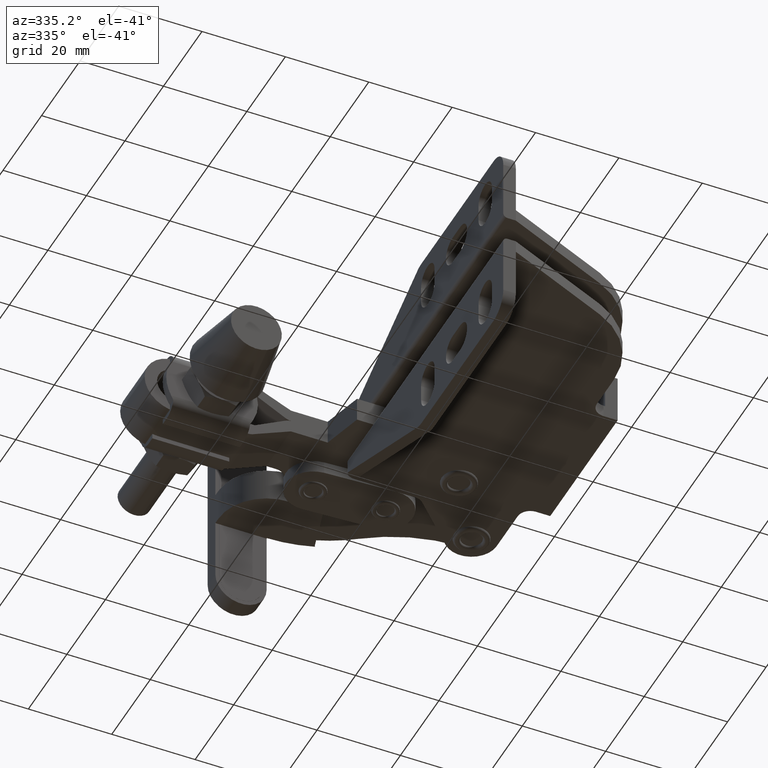
[diagram: clean part render]
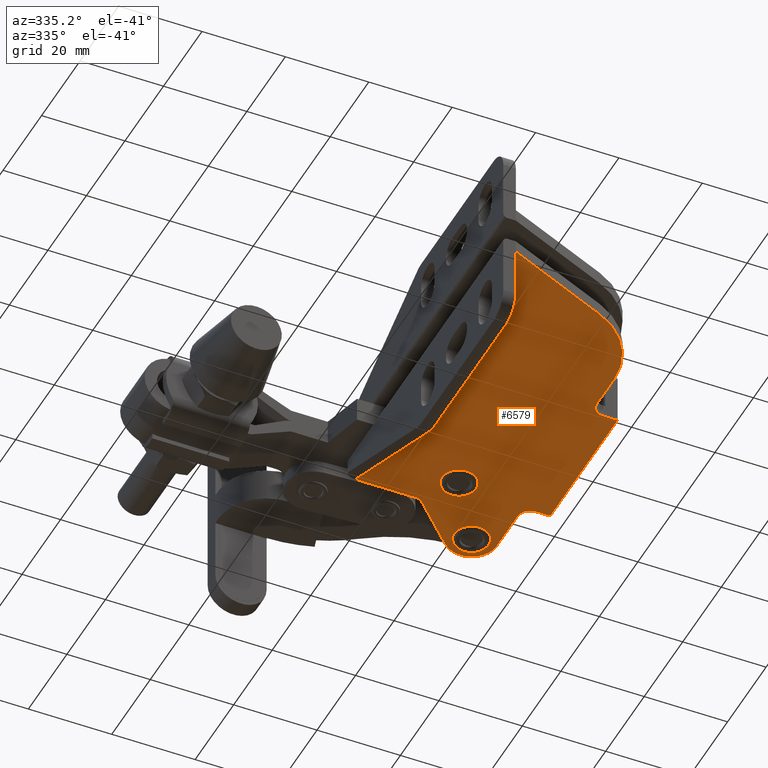
[diagram: same view with one face highlighted and labeled with its STEP entity id]
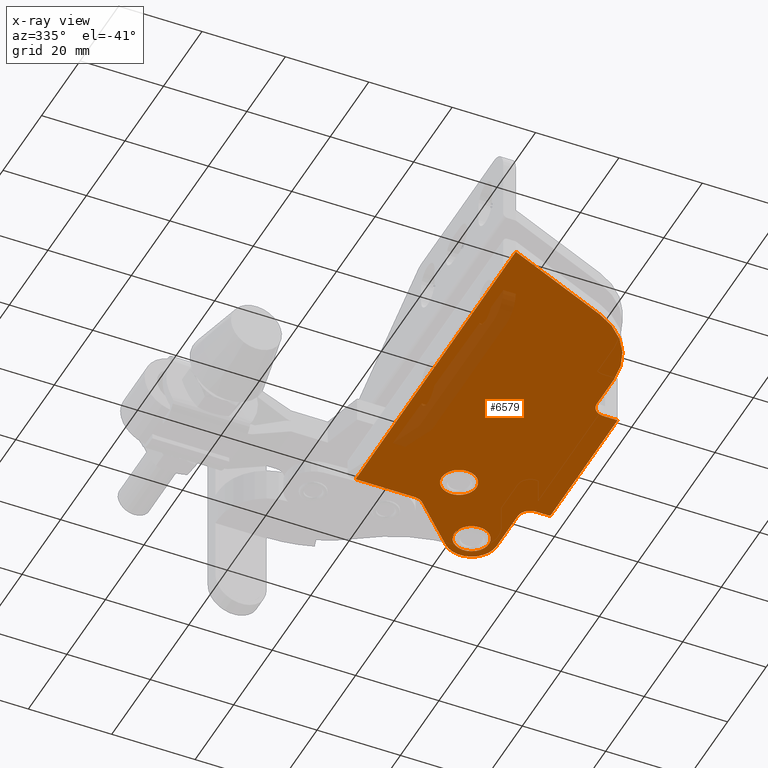
[diagram: x-ray of the same camera — body ghosted, the highlighted face saturated]
A machine part, auxiliary view. The second image highlights one B-rep face of the part: STEP entity #6579.
The next image is the same camera in x-ray: the body ghosted, the highlighted face saturated — about 9% of this face is hidden behind the body in this view.
In plain terms, the highlighted planar face has unit normal (0, 0, 1).
Its self-contained STEP definition (entity closure, byte-faithful):
#27 = EDGE_CURVE ( 'NONE', #7327, #4670, #3059, .T. ) ;
#130 = VERTEX_POINT ( 'NONE', #6921 ) ;
#243 = VERTEX_POINT ( 'NONE', #13247 ) ;
#336 = VECTOR ( 'NONE', #3822, 1000.000000000000000 ) ;
#359 = DIRECTION ( 'NONE',  ( -0.0000000000000000000, -0.0000000000000000000, -1.000000000000000000 ) ) ;
#365 = ORIENTED_EDGE ( 'NONE', *, *, #11018, .F. ) ;
#471 = DIRECTION ( 'NONE',  ( 0.0000000000000000000, 0.0000000000000000000, 1.000000000000000000 ) ) ;
#496 = ORIENTED_EDGE ( 'NONE', *, *, #15171, .F. ) ;
#654 = CARTESIAN_POINT ( 'NONE',  ( 17.24999999999998200, 83.20000000000004500, -8.999999999999994700 ) ) ;
#655 = VECTOR ( 'NONE', #3395, 1000.000000000000000 ) ;
#681 = ORIENTED_EDGE ( 'NONE', *, *, #15051, .F. ) ;
#728 = CARTESIAN_POINT ( 'NONE',  ( 3.000000000000020000, 83.20000000000004500, -8.999999999999994700 ) ) ;
#881 = CARTESIAN_POINT ( 'NONE',  ( 43.19999999999995300, 79.50000000000001400, -8.999999999999994700 ) ) ;
#1035 = DIRECTION ( 'NONE',  ( 0.0000000000000000000, 0.0000000000000000000, 1.000000000000000000 ) ) ;
#1114 = AXIS2_PLACEMENT_3D ( 'NONE', #6155, #14407, #7330 ) ;
#1215 = CARTESIAN_POINT ( 'NONE',  ( 23.90000000000013000, 74.69999999999991800, -8.999999999999994700 ) ) ;
#1459 = CARTESIAN_POINT ( 'NONE',  ( 2.999999999999992500, -2.001604010742468500E-015, -8.999999999999994700 ) ) ;
#1496 = DIRECTION ( 'NONE',  ( 0.0000000000000000000, 0.0000000000000000000, 1.000000000000000000 ) ) ;
#1619 = DIRECTION ( 'NONE',  ( -0.0000000000000000000, -0.0000000000000000000, -1.000000000000000000 ) ) ;
#1666 = CARTESIAN_POINT ( 'NONE',  ( 19.82815884651003600, 73.89837064628061100, -8.999999999999994700 ) ) ;
#1752 = ORIENTED_EDGE ( 'NONE', *, *, #4869, .T. ) ;
#2026 = FACE_BOUND ( 'NONE', #2135, .T. ) ;
#2103 = DIRECTION ( 'NONE',  ( -1.000000000000000000, -0.0000000000000000000, -0.0000000000000000000 ) ) ;
#2108 = DIRECTION ( 'NONE',  ( 1.000000000000000000, 0.0000000000000000000, 0.0000000000000000000 ) ) ;
#2135 = EDGE_LOOP ( 'NONE', ( #681, #10296 ) ) ;
#2211 = EDGE_CURVE ( 'NONE', #130, #12495, #3347, .T. ) ;
#2244 = VERTEX_POINT ( 'NONE', #4979 ) ;
#2436 = DIRECTION ( 'NONE',  ( 1.000000000000000000, -3.344045254895048800E-015, 0.0000000000000000000 ) ) ;
#2568 = ORIENTED_EDGE ( 'NONE', *, *, #2989, .F. ) ;
#2597 = VECTOR ( 'NONE', #3763, 1000.000000000000000 ) ;
#2989 = EDGE_CURVE ( 'NONE', #10191, #130, #13856, .T. ) ;
#3003 = CARTESIAN_POINT ( 'NONE',  ( 46.60000000000002300, 76.50000000000001400, -8.999999999999994700 ) ) ;
#3059 = LINE ( 'NONE', #15386, #15275 ) ;
#3113 = ORIENTED_EDGE ( 'NONE', *, *, #13712, .T. ) ;
#3181 = CARTESIAN_POINT ( 'NONE',  ( 19.37909327213442300, 84.08648117146978500, -8.999999999999994700 ) ) ;
#3347 = LINE ( 'NONE', #10891, #2597 ) ;
#3390 = CARTESIAN_POINT ( 'NONE',  ( 34.20000000000014500, 90.49999999999997200, -8.999999999999991100 ) ) ;
#3395 = DIRECTION ( 'NONE',  ( -4.625929269272216600E-015, 1.000000000000000000, 0.0000000000000000000 ) ) ;
#3617 = CIRCLE ( 'NONE', #7940, 4.150000000000001200 ) ;
#3622 = DIRECTION ( 'NONE',  ( 0.0000000000000000000, 1.000000000000000000, 0.0000000000000000000 ) ) ;
#3706 = VECTOR ( 'NONE', #9089, 1000.000000000000000 ) ;
#3763 = DIRECTION ( 'NONE',  ( 0.0000000000000000000, 1.000000000000000000, 0.0000000000000000000 ) ) ;
#3822 = DIRECTION ( 'NONE',  ( -1.000000000000000000, -0.0000000000000000000, -0.0000000000000000000 ) ) ;
#3838 = EDGE_CURVE ( 'NONE', #8816, #11541, #3617, .T. ) ;
#4190 = DIRECTION ( 'NONE',  ( 0.0000000000000000000, -0.0000000000000000000, 1.000000000000000000 ) ) ;
#4598 = DIRECTION ( 'NONE',  ( 0.9811665430096616600, 0.1931636996914014300, 0.0000000000000000000 ) ) ;
#4670 = VERTEX_POINT ( 'NONE', #3003 ) ;
#4811 = ORIENTED_EDGE ( 'NONE', *, *, #12786, .F. ) ;
#4866 = AXIS2_PLACEMENT_3D ( 'NONE', #3390, #11702, #4598 ) ;
#4869 = EDGE_CURVE ( 'NONE', #13692, #12276, #15245, .T. ) ;
#4979 = CARTESIAN_POINT ( 'NONE',  ( 2.999999999999992500, -2.001604010742468500E-015, -8.999999999999994700 ) ) ;
#5207 = ORIENTED_EDGE ( 'NONE', *, *, #6197, .F. ) ;
#5306 = CARTESIAN_POINT ( 'NONE',  ( 29.94181345573087300, 94.72703765706036400, -8.999999999999994700 ) ) ;
#5427 = AXIS2_PLACEMENT_3D ( 'NONE', #881, #9211, #2108 ) ;
#6125 = AXIS2_PLACEMENT_3D ( 'NONE', #1215, #9542, #2436 ) ;
#6155 = CARTESIAN_POINT ( 'NONE',  ( 17.24999999999998200, 86.20000000000006000, -8.999999999999994700 ) ) ;
#6197 = EDGE_CURVE ( 'NONE', #12155, #2244, #10196, .T. ) ;
#6245 = EDGE_CURVE ( 'NONE', #9690, #7526, #14619, .T. ) ;
#6309 = CARTESIAN_POINT ( 'NONE',  ( 40.19999999999999600, 90.50000000000002800, -8.999999999999994700 ) ) ;
#6472 = AXIS2_PLACEMENT_3D ( 'NONE', #8641, #1496, #9818 ) ;
#6579 = ADVANCED_FACE ( 'NONE', ( #14234, #11501, #2026 ), #6983, .F. ) ;
#6689 = LINE ( 'NONE', #7354, #336 ) ;
#6771 = ORIENTED_EDGE ( 'NONE', *, *, #14610, .F. ) ;
#6797 = LINE ( 'NONE', #10515, #655 ) ;
#6921 = CARTESIAN_POINT ( 'NONE',  ( 40.20000000000001000, 79.50000000000001400, -8.999999999999994700 ) ) ;
#6983 = PLANE ( 'NONE',  #8076 ) ;
#7327 = VERTEX_POINT ( 'NONE', #13990 ) ;
#7330 = DIRECTION ( 'NONE',  ( 1.000000000000000000, 0.0000000000000000000, 0.0000000000000000000 ) ) ;
#7354 = CARTESIAN_POINT ( 'NONE',  ( 43.19999999999995300, 76.50000000000001400, -8.999999999999994700 ) ) ;
#7384 = CARTESIAN_POINT ( 'NONE',  ( 40.20000000000007400, 38.49999999999855000, -8.999999999999994700 ) ) ;
#7496 = CARTESIAN_POINT ( 'NONE',  ( 43.20000000000002400, 38.49999999999855000, -8.999999999999994700 ) ) ;
#7508 = LINE ( 'NONE', #5306, #13417 ) ;
#7526 = VERTEX_POINT ( 'NONE', #13157 ) ;
#7606 = CARTESIAN_POINT ( 'NONE',  ( 34.19999999999994600, 90.50000000000002800, -8.999999999999994700 ) ) ;
#7624 = VERTEX_POINT ( 'NONE', #14601 ) ;
#7940 = AXIS2_PLACEMENT_3D ( 'NONE', #8758, #1619, #9929 ) ;
#8076 = AXIS2_PLACEMENT_3D ( 'NONE', #8184, #1035, #9365 ) ;
#8184 = CARTESIAN_POINT ( 'NONE',  ( 20.20000000000004500, 29.49999999999997200, -8.999999999999994700 ) ) ;
#8191 = ORIENTED_EDGE ( 'NONE', *, *, #13147, .F. ) ;
#8240 = VERTEX_POINT ( 'NONE', #654 ) ;
#8559 = ORIENTED_EDGE ( 'NONE', *, *, #6245, .F. ) ;
#8641 = CARTESIAN_POINT ( 'NONE',  ( 20.20000000000004500, 29.49999999999997200, -8.999999999999994700 ) ) ;
#8708 = DIRECTION ( 'NONE',  ( 1.000000000000000000, 0.0000000000000000000, 0.0000000000000000000 ) ) ;
#8758 = CARTESIAN_POINT ( 'NONE',  ( 23.90000000000013000, 74.69999999999991800, -8.999999999999994700 ) ) ;
#8770 = EDGE_LOOP ( 'NONE', ( #1752, #3113 ) ) ;
#8796 = ORIENTED_EDGE ( 'NONE', *, *, #10492, .F. ) ;
#8808 = DIRECTION ( 'NONE',  ( 1.000000000000000000, 0.0000000000000000000, 0.0000000000000000000 ) ) ;
#8816 = VERTEX_POINT ( 'NONE', #1666 ) ;
#8958 = CARTESIAN_POINT ( 'NONE',  ( 27.97184115349022400, 75.50162935371923800, -8.999999999999994700 ) ) ;
#9036 = DIRECTION ( 'NONE',  ( 0.9142238515396996500, 0.4052095128151820800, 0.0000000000000000000 ) ) ;
#9040 = CARTESIAN_POINT ( 'NONE',  ( 43.20000000000002400, 41.49999999999849400, -8.999999999999994700 ) ) ;
#9089 = DIRECTION ( 'NONE',  ( 1.000000000000000000, 0.0000000000000000000, 0.0000000000000000000 ) ) ;
#9211 = DIRECTION ( 'NONE',  ( -0.0000000000000000000, -0.0000000000000000000, -1.000000000000000000 ) ) ;
#9219 = ORIENTED_EDGE ( 'NONE', *, *, #12990, .F. ) ;
#9355 = CIRCLE ( 'NONE', #12918, 6.000000000000047100 ) ;
#9365 = DIRECTION ( 'NONE',  ( 1.000000000000000000, 0.0000000000000000000, -0.0000000000000000000 ) ) ;
#9499 = VERTEX_POINT ( 'NONE', #3181 ) ;
#9542 = DIRECTION ( 'NONE',  ( -0.0000000000000000000, -0.0000000000000000000, -1.000000000000000000 ) ) ;
#9644 = LINE ( 'NONE', #10385, #10011 ) ;
#9690 = VERTEX_POINT ( 'NONE', #7384 ) ;
#9786 = DIRECTION ( 'NONE',  ( -6.672013369141563200E-016, -1.000000000000000000, 0.0000000000000000000 ) ) ;
#9818 = DIRECTION ( 'NONE',  ( 1.000000000000000000, 0.0000000000000000000, 0.0000000000000000000 ) ) ;
#9929 = DIRECTION ( 'NONE',  ( 1.000000000000000000, 0.0000000000000000000, 0.0000000000000000000 ) ) ;
#10011 = VECTOR ( 'NONE', #2103, 1000.000000000000000 ) ;
#10167 = VERTEX_POINT ( 'NONE', #12924 ) ;
#10191 = VERTEX_POINT ( 'NONE', #15301 ) ;
#10196 = LINE ( 'NONE', #1459, #11520 ) ;
#10296 = ORIENTED_EDGE ( 'NONE', *, *, #3838, .F. ) ;
#10385 = CARTESIAN_POINT ( 'NONE',  ( 4.766151381121716100E-014, 83.20000000000004500, -8.999999999999994700 ) ) ;
#10492 = EDGE_CURVE ( 'NONE', #8240, #12155, #9644, .T. ) ;
#10515 = CARTESIAN_POINT ( 'NONE',  ( 40.20000000000011700, 29.49999999999997200, -8.999999999999994700 ) ) ;
#10549 = LINE ( 'NONE', #14976, #13288 ) ;
#10587 = CIRCLE ( 'NONE', #6125, 4.150000000000001200 ) ;
#10891 = CARTESIAN_POINT ( 'NONE',  ( 40.20000000000001000, 79.50000000000001400, -8.999999999999994700 ) ) ;
#11018 = EDGE_CURVE ( 'NONE', #2244, #243, #10549, .T. ) ;
#11089 = ORIENTED_EDGE ( 'NONE', *, *, #2211, .F. ) ;
#11140 = EDGE_LOOP ( 'NONE', ( #496, #14029, #11433, #8559, #4811, #9219, #365, #5207, #8796, #6771, #8191, #12889, #11089, #2568 ) ) ;
#11170 = AXIS2_PLACEMENT_3D ( 'NONE', #11318, #4190, #12491 ) ;
#11318 = CARTESIAN_POINT ( 'NONE',  ( 34.20000000000014500, 90.49999999999997200, -8.999999999999991100 ) ) ;
#11433 = ORIENTED_EDGE ( 'NONE', *, *, #14962, .F. ) ;
#11501 = FACE_OUTER_BOUND ( 'NONE', #11140, .T. ) ;
#11520 = VECTOR ( 'NONE', #9786, 1000.000000000000000 ) ;
#11541 = VERTEX_POINT ( 'NONE', #8958 ) ;
#11702 = DIRECTION ( 'NONE',  ( 0.0000000000000000000, -0.0000000000000000000, 1.000000000000000000 ) ) ;
#12155 = VERTEX_POINT ( 'NONE', #728 ) ;
#12276 = VERTEX_POINT ( 'NONE', #14019 ) ;
#12432 = CARTESIAN_POINT ( 'NONE',  ( 38.27184115349024300, 91.30162935371927800, -8.999999999999991100 ) ) ;
#12491 = DIRECTION ( 'NONE',  ( 0.9811665430096616600, 0.1931636996914014300, 0.0000000000000000000 ) ) ;
#12495 = VERTEX_POINT ( 'NONE', #6309 ) ;
#12558 = EDGE_CURVE ( 'NONE', #12495, #10167, #9355, .T. ) ;
#12616 = AXIS2_PLACEMENT_3D ( 'NONE', #7496, #359, #8708 ) ;
#12786 = EDGE_CURVE ( 'NONE', #7624, #9690, #6797, .T. ) ;
#12889 = ORIENTED_EDGE ( 'NONE', *, *, #12558, .F. ) ;
#12918 = AXIS2_PLACEMENT_3D ( 'NONE', #7606, #471, #8808 ) ;
#12924 = CARTESIAN_POINT ( 'NONE',  ( 29.94181345573087300, 94.72703765706036400, -8.999999999999994700 ) ) ;
#12990 = EDGE_CURVE ( 'NONE', #243, #7624, #13602, .T. ) ;
#13147 = EDGE_CURVE ( 'NONE', #10167, #9499, #7508, .T. ) ;
#13156 = LINE ( 'NONE', #9040, #3706 ) ;
#13157 = CARTESIAN_POINT ( 'NONE',  ( 43.20000000000002400, 41.49999999999849400, -8.999999999999994700 ) ) ;
#13247 = CARTESIAN_POINT ( 'NONE',  ( 28.30419025630372000, 11.21552296920597400, -8.999999999999994700 ) ) ;
#13288 = VECTOR ( 'NONE', #9036, 1000.000000000000200 ) ;
#13417 = VECTOR ( 'NONE', #13616, 1000.000000000000100 ) ;
#13602 = CIRCLE ( 'NONE', #6472, 20.00000000000001800 ) ;
#13616 = DIRECTION ( 'NONE',  ( -0.7045062761767250100, -0.7096977573781700900, 0.0000000000000000000 ) ) ;
#13692 = VERTEX_POINT ( 'NONE', #12432 ) ;
#13712 = EDGE_CURVE ( 'NONE', #12276, #13692, #14136, .T. ) ;
#13856 = CIRCLE ( 'NONE', #5427, 2.999999999999975100 ) ;
#13908 = CIRCLE ( 'NONE', #1114, 3.000000000000016400 ) ;
#13990 = CARTESIAN_POINT ( 'NONE',  ( 46.60000000000002300, 41.49999999999849400, -8.999999999999994700 ) ) ;
#14019 = CARTESIAN_POINT ( 'NONE',  ( 30.12815884651005000, 89.69837064628066500, -8.999999999999991100 ) ) ;
#14029 = ORIENTED_EDGE ( 'NONE', *, *, #27, .F. ) ;
#14136 = CIRCLE ( 'NONE', #11170, 4.149999999999999500 ) ;
#14234 = FACE_BOUND ( 'NONE', #8770, .T. ) ;
#14407 = DIRECTION ( 'NONE',  ( -0.0000000000000000000, -0.0000000000000000000, -1.000000000000000000 ) ) ;
#14601 = CARTESIAN_POINT ( 'NONE',  ( 40.20000000000011700, 29.49999999999997200, -8.999999999999994700 ) ) ;
#14610 = EDGE_CURVE ( 'NONE', #9499, #8240, #13908, .T. ) ;
#14619 = CIRCLE ( 'NONE', #12616, 2.999999999999947200 ) ;
#14962 = EDGE_CURVE ( 'NONE', #7526, #7327, #13156, .T. ) ;
#14976 = CARTESIAN_POINT ( 'NONE',  ( 2.999999999999994700, 0.0000000000000000000, -8.999999999999994700 ) ) ;
#15051 = EDGE_CURVE ( 'NONE', #11541, #8816, #10587, .T. ) ;
#15171 = EDGE_CURVE ( 'NONE', #4670, #10191, #6689, .T. ) ;
#15245 = CIRCLE ( 'NONE', #4866, 4.149999999999999500 ) ;
#15275 = VECTOR ( 'NONE', #3622, 1000.000000000000000 ) ;
#15301 = CARTESIAN_POINT ( 'NONE',  ( 43.19999999999995300, 76.50000000000004300, -8.999999999999994700 ) ) ;
#15386 = CARTESIAN_POINT ( 'NONE',  ( 46.60000000000002300, 38.67157287525230200, -8.999999999999994700 ) ) ;